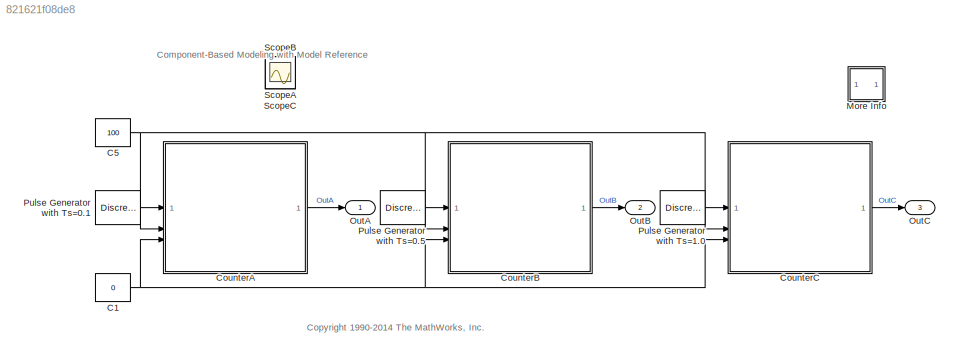
MODEL slx_821621f08de8
KIND model
CONFIG AbsTol = auto
CONFIG EnableMultiTasking = off
CONFIG FixedStep = 0.1
CONFIG InitFcn = warning('off','Simulink:Logging:DatasetRTWGenRootOutputNotSupported');\nwarning('off','Simulink:Logging:DatasetRTWGenStateNotSupported');
CONFIG MaxStep = auto
CONFIG MinStep = auto
CONFIG RelTol = 1e-3
CONFIG SampleTimeConstraint = Unconstrained
CONFIG SolverName = FixedStepDiscrete
CONFIG StartFcn = warning('off','Simulink:Logging:DatasetRTWGenRootOutputNotSupported');\nwarning('off','Simulink:Logging:DatasetRTWGenStateNotSupported');
CONFIG StartTime = 0.0
CONFIG StopFcn = warning('on','Simulink:Logging:DatasetRTWGenRootOutputNotSupported');\nwarning('on','Simulink:Logging:DatasetRTWGenStateNotSupported');
CONFIG StopTime = 10.0
BLOCK [Constant] C1
  Value = 0
BLOCK [Constant] C5
  Value = 100
BLOCK [ModelReference] CounterA
  ModelNameDialog = sldemo_mdlref_counter
  ModelReferenceVersion = 6.0
BLOCK [ModelReference] CounterB
  ModelNameDialog = sldemo_mdlref_counter
  ModelReferenceVersion = 6.0
BLOCK [ModelReference] CounterC
  ModelNameDialog = sldemo_mdlref_counter
  ModelReferenceVersion = 6.0
BLOCK [SubSystem] More Info
  OpenFcn = showExample('simulink_features/ComponentBasedModelingWithModelReferenceExample')
BLOCK [Outport] OutA
  VectorParamsAs1DForOutWhenUnconnected = off
BLOCK [Outport] OutB
  Port = 2
  VectorParamsAs1DForOutWhenUnconnected = off
BLOCK [Outport] OutC
  Port = 3
  VectorParamsAs1DForOutWhenUnconnected = off
BLOCK [DiscretePulseGenerator] Pulse Generator with Ts=0.1
  SampleTime = 0.1
  VectorParams1D = off
BLOCK [DiscretePulseGenerator] Pulse Generator with Ts=0.5
  SampleTime = 0.5
BLOCK [DiscretePulseGenerator] Pulse Generator with Ts=1.0
  SampleTime = 1.0
BLOCK [Scope] ScopeA
  Floating = off
  IOType = viewer
  NumInputPorts = 1
  ScopeSpecificationString = Simulink.scopes.TimeScopeBlockCfg('CurrentConfiguration', extmgr.ConfigurationSet(extmgr.Configuration('Core','General UI',true),extmgr.Configuration('Core','Source UI',true),extmgr.Configuration('Sources','WiredSimulink',true,'DataLoggingSaveFormat','StructureWithTime','DataLoggingDecimation','1'),extmgr.Configuration('Visuals','Time Domain',true,'SerializedDisplays',{struct('MinYLimReal','0','Ma...<+1566ch>
BLOCK [Scope] ScopeB
  Floating = off
  IOType = viewer
  NumInputPorts = 1
  ScopeSpecificationString = Simulink.scopes.TimeScopeBlockCfg('CurrentConfiguration', extmgr.ConfigurationSet(extmgr.Configuration('Core','General UI',true),extmgr.Configuration('Core','Source UI',true),extmgr.Configuration('Sources','WiredSimulink',true,'DataLoggingVariableName','ScopeData1','DataLoggingSaveFormat','StructureWithTime','DataLoggingDecimation','1'),extmgr.Configuration('Visuals','Time Domain',true,'Serialized...<+1605ch>
BLOCK [Scope] ScopeC
  Floating = off
  IOType = viewer
  NumInputPorts = 1
  ScopeSpecificationString = Simulink.scopes.TimeScopeBlockCfg('CurrentConfiguration', extmgr.ConfigurationSet(extmgr.Configuration('Core','General UI',true),extmgr.Configuration('Core','Source UI',true),extmgr.Configuration('Sources','WiredSimulink',true,'DataLoggingVariableName','ScopeData2','DataLoggingSaveFormat','StructureWithTime','DataLoggingDecimation','1'),extmgr.Configuration('Visuals','Time Domain',true,'Serialized...<+1606ch>
ANNOTATION (root): Component-Based Modeling with Model Reference
ANNOTATION (root): <copyright redacted>
ANNOTATION More Info: Bus Block Demonstration
ANNOTATION More Info: This demonstration shows how signals may be grouped and ungrouped while retaining their names. In this demonstration, 5 signals are created and labelled appropriately. These signals are then mux'd together to create a bus of signals. This bus of signals is then fed into the Bus Selector block. Inside of the Bus Selector block, the Pulse and Chirp signals are chosen to be output from the original s...<+114ch>
NET C1:1 -> CounterA:3, CounterB:3, CounterC:3
NET C5:1 -> CounterA:1, CounterB:1, CounterC:1
LINE CounterA:1 -> OutA:1
LINE CounterB:1 -> OutB:1
LINE CounterC:1 -> OutC:1
LINE Pulse Generator with Ts=0.1:1 -> CounterA:2
LINE Pulse Generator with Ts=0.5:1 -> CounterB:2
LINE Pulse Generator with Ts=1.0:1 -> CounterC:2
note: NET lines group one-source signal fan-out (src -> all destinations, sorted); 1:1 wires keep LINE
